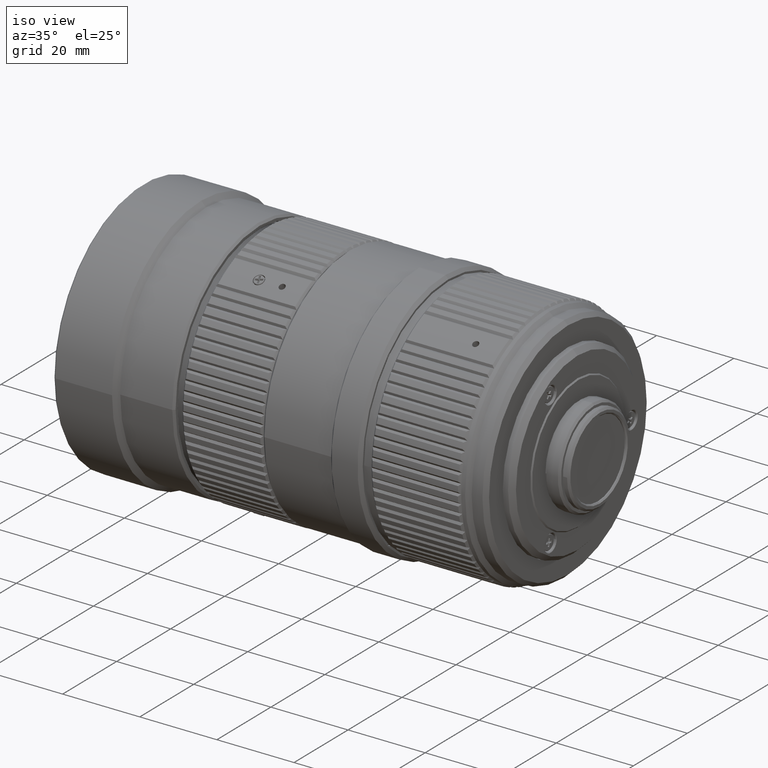
[diagram: clean part render]
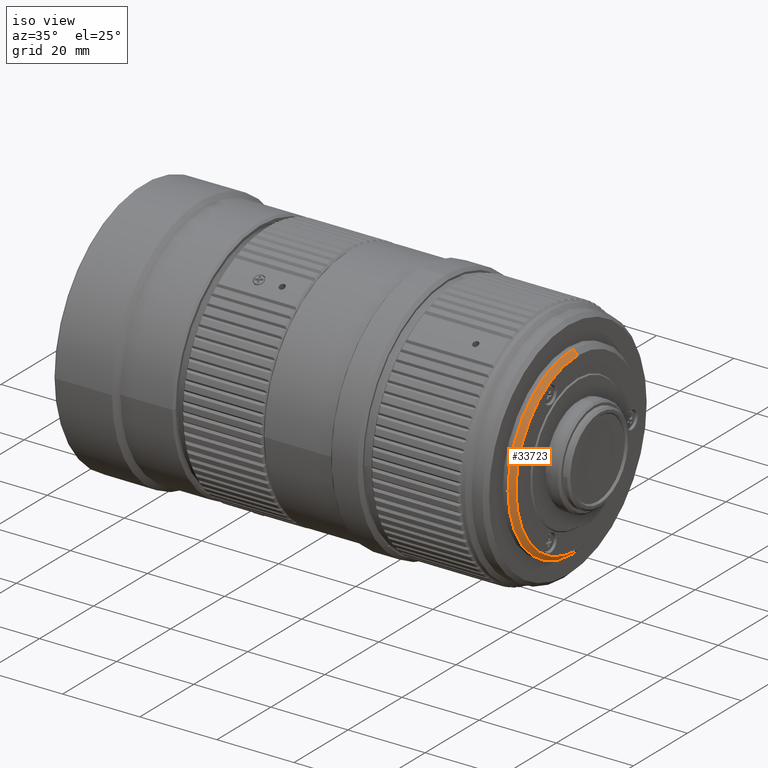
[diagram: same view with one face highlighted and labeled with its STEP entity id]
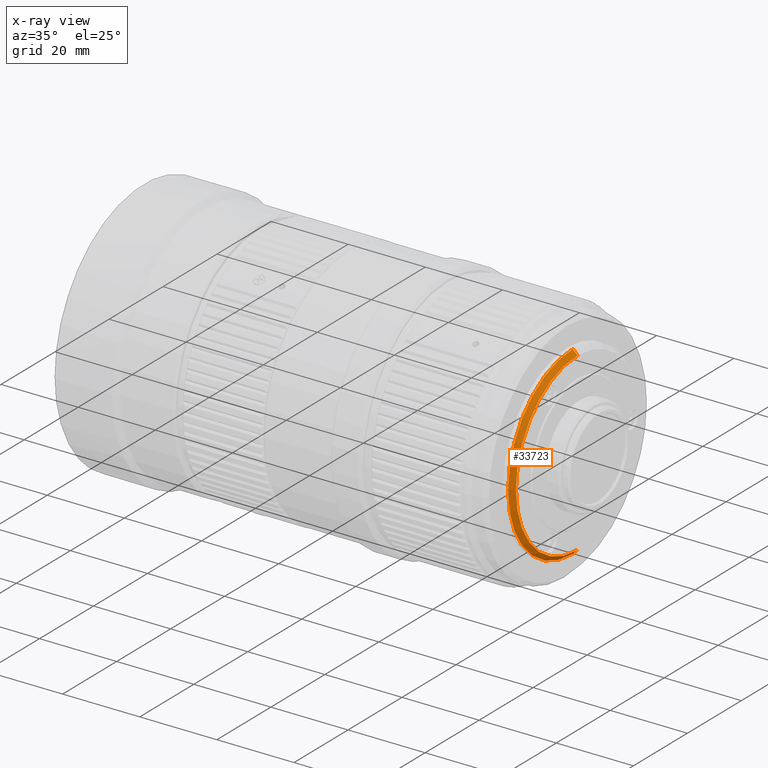
[diagram: x-ray of the same camera — body ghosted, the highlighted face saturated]
A machine part, iso view. The second image highlights one B-rep face of the part: STEP entity #33723.
The next image is the same camera in x-ray: the body ghosted, the highlighted face saturated — about 0% of this face is hidden behind the body in this view.
In plain terms, the highlighted conical surface has half-angle 45 deg.
Its self-contained STEP definition (entity closure, byte-faithful):
#810 = LINE ( 'NONE', #51377, #93941 ) ;
#1145 = CARTESIAN_POINT ( 'NONE',  ( 2.299999999999999822, 0.000000000000000000, 24.00000000004883915 ) ) ;
#4062 = CIRCLE ( 'NONE', #63564, 24.00000000000000000 ) ;
#9541 = EDGE_CURVE ( 'NONE', #18357, #41832, #810, .T. ) ;
#16937 = EDGE_CURVE ( 'NONE', #88898, #18357, #94447, .T. ) ;
#18357 = VERTEX_POINT ( 'NONE', #73874 ) ;
#23510 = CONICAL_SURFACE ( 'NONE', #50612, 24.00000000000090949, 0.7853981633974482790 ) ;
#27575 = DIRECTION ( 'NONE',  ( -0.7071067811865474617, 8.659560562354932858E-17, -0.7071067811865474617 ) ) ;
#32011 = DIRECTION ( 'NONE',  ( -1.000000000000000000, 0.000000000000000000, 0.000000000000000000 ) ) ;
#32488 = VERTEX_POINT ( 'NONE', #100449 ) ;
#32509 = EDGE_CURVE ( 'NONE', #88898, #32488, #52033, .T. ) ;
#33115 = DIRECTION ( 'NONE',  ( 0.000000000000000000, 0.000000000000000000, 1.000000000000000000 ) ) ;
#33723 = ADVANCED_FACE ( 'NONE', ( #99416 ), #23510, .T. ) ;
#34004 = CARTESIAN_POINT ( 'NONE',  ( 2.300000000047930371, 0.000000000000000000, 0.000000000000000000 ) ) ;
#40729 = ORIENTED_EDGE ( 'NONE', *, *, #16937, .T. ) ;
#41038 = CARTESIAN_POINT ( 'NONE',  ( 3.500000000030922820, 0.000000000000000000, 0.000000000000000000 ) ) ;
#41832 = VERTEX_POINT ( 'NONE', #1145 ) ;
#45493 = EDGE_CURVE ( 'NONE', #32488, #41832, #4062, .T. ) ;
#50612 = AXIS2_PLACEMENT_3D ( 'NONE', #34004, #58987, #91453 ) ;
#51377 = CARTESIAN_POINT ( 'NONE',  ( 2.300000000047930371, 0.000000000000000000, 24.00000000000090949 ) ) ;
#52033 = LINE ( 'NONE', #84494, #93095 ) ;
#58987 = DIRECTION ( 'NONE',  ( -1.000000000000000000, 0.000000000000000000, 0.000000000000000000 ) ) ;
#63564 = AXIS2_PLACEMENT_3D ( 'NONE', #98540, #91628, #33115 ) ;
#69510 = ORIENTED_EDGE ( 'NONE', *, *, #32509, .F. ) ;
#72342 = AXIS2_PLACEMENT_3D ( 'NONE', #41038, #32011, #73479 ) ;
#73479 = DIRECTION ( 'NONE',  ( 0.000000000000000000, 0.000000000000000000, 1.000000000000000000 ) ) ;
#73874 = CARTESIAN_POINT ( 'NONE',  ( 3.500000000030922820, 0.000000000000000000, 22.80000000001791705 ) ) ;
#74672 = EDGE_LOOP ( 'NONE', ( #69510, #40729, #96096, #98365 ) ) ;
#82259 = DIRECTION ( 'NONE',  ( -0.7071067811865474617, 0.000000000000000000, 0.7071067811865474617 ) ) ;
#83646 = CARTESIAN_POINT ( 'NONE',  ( 3.500000000030922820, 2.865673510005903086E-15, -22.80000000001791705 ) ) ;
#84494 = CARTESIAN_POINT ( 'NONE',  ( 2.300000000047930371, 2.939152317953759124E-15, -24.00000000000090949 ) ) ;
#88898 = VERTEX_POINT ( 'NONE', #83646 ) ;
#91453 = DIRECTION ( 'NONE',  ( 0.000000000000000000, 0.000000000000000000, 1.000000000000000000 ) ) ;
#91628 = DIRECTION ( 'NONE',  ( -1.000000000000000000, 0.000000000000000000, 0.000000000000000000 ) ) ;
#93095 = VECTOR ( 'NONE', #27575, 1000.000000000000114 ) ;
#93941 = VECTOR ( 'NONE', #82259, 1000.000000000000114 ) ;
#94447 = CIRCLE ( 'NONE', #72342, 22.80000000001791705 ) ;
#96096 = ORIENTED_EDGE ( 'NONE', *, *, #9541, .T. ) ;
#98365 = ORIENTED_EDGE ( 'NONE', *, *, #45493, .F. ) ;
#98540 = CARTESIAN_POINT ( 'NONE',  ( 2.299999999999999822, 5.329070518200800303E-15, -3.552713678800500140E-15 ) ) ;
#99416 = FACE_OUTER_BOUND ( 'NONE', #74672, .T. ) ;
#100449 = CARTESIAN_POINT ( 'NONE',  ( 2.299999999999999822, 2.939152317959629038E-15, -24.00000000004883915 ) ) ;